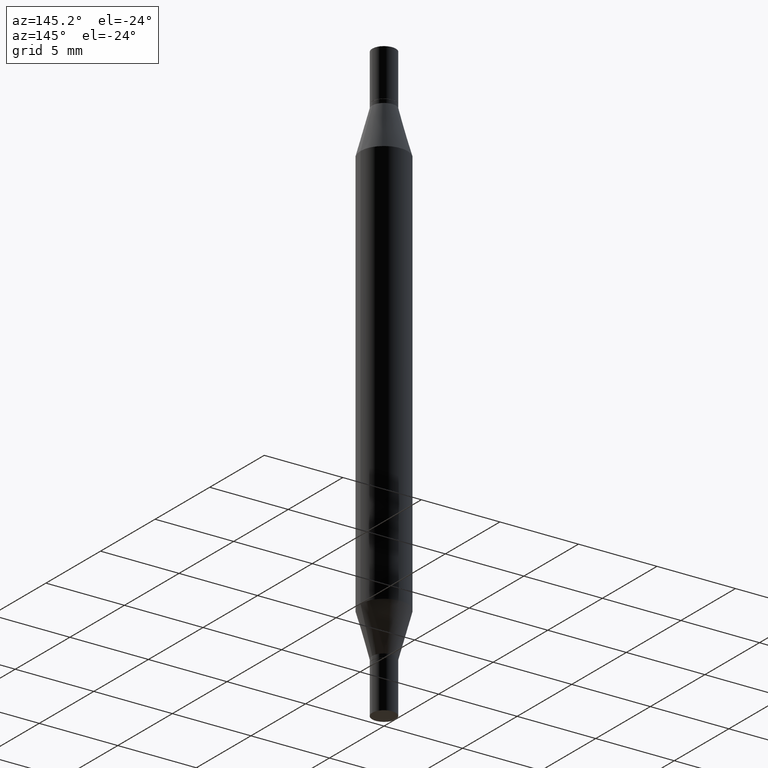
[diagram: clean part render]
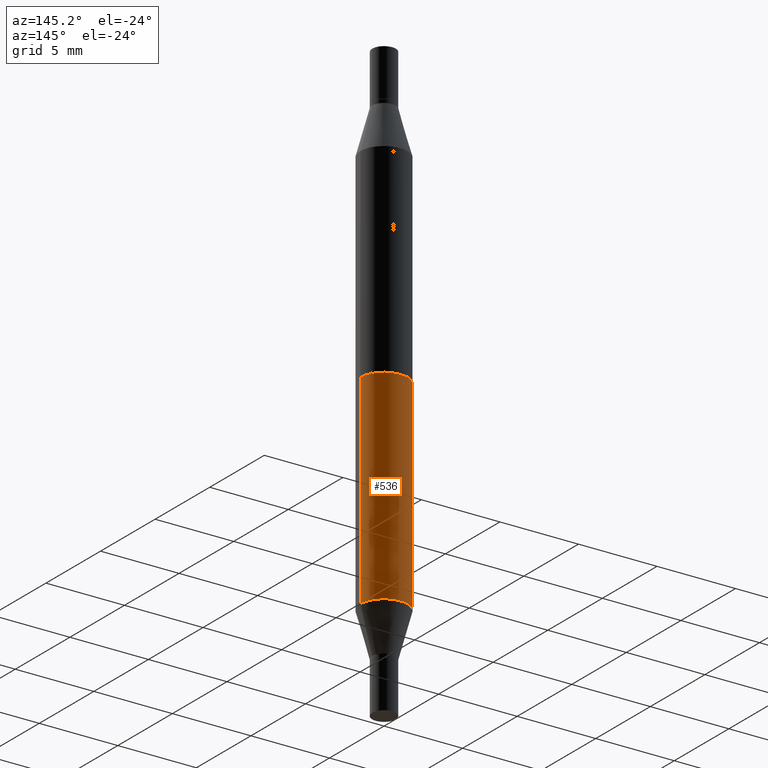
[diagram: same view with one face highlighted and labeled with its STEP entity id]
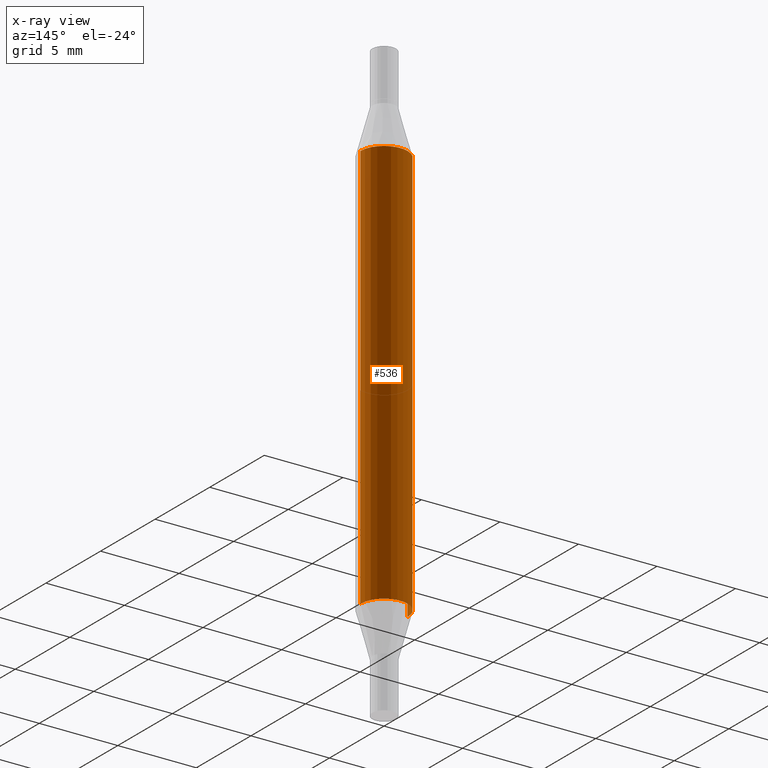
[diagram: x-ray of the same camera — body ghosted, the highlighted face saturated]
A machine part, auxiliary view. The second image highlights one B-rep face of the part: STEP entity #536.
The next image is the same camera in x-ray: the body ghosted, the highlighted face saturated — about 0% of this face is hidden behind the body in this view.
In plain terms, the highlighted cylindrical surface (edge-blend (fillet) strip) has radius 1.4999 mm, axis along (-0, -0, -1).
Its self-contained STEP definition (entity closure, byte-faithful):
#14 = ORIENTED_EDGE ( 'NONE', *, *, #86, .F. ) ;
#41 = CARTESIAN_POINT ( 'NONE',  ( 0.000000000000000000, -5.223847416807283040E-15, -1.496099999999999985 ) ) ;
#43 = CARTESIAN_POINT ( 'NONE',  ( 3.076410765668156654E-29, -4.392299240039190746E-15, -1.258004501176717804 ) ) ;
#45 = EDGE_CURVE ( 'NONE', #464, #46, #835, .T. ) ;
#46 = VERTEX_POINT ( 'NONE', #794 ) ;
#62 = LINE ( 'NONE', #969, #603 ) ;
#64 = DIRECTION ( 'NONE',  ( -2.445468806185136877E-29, -3.491805094961123683E-15, -1.000000000000000000 ) ) ;
#86 = EDGE_CURVE ( 'NONE', #631, #237, #602, .T. ) ;
#94 = ORIENTED_EDGE ( 'NONE', *, *, #379, .F. ) ;
#118 = DIRECTION ( 'NONE',  ( -2.445468806185136597E-29, -3.491805094961124077E-15, -1.000000000000000000 ) ) ;
#196 = FACE_OUTER_BOUND ( 'NONE', #420, .T. ) ;
#203 = AXIS2_PLACEMENT_3D ( 'NONE', #43, #799, #583 ) ;
#229 = CARTESIAN_POINT ( 'NONE',  ( -0.05905000000000000526, -4.818735010038875060E-15, -1.496099999999999985 ) ) ;
#232 = ORIENTED_EDGE ( 'NONE', *, *, #45, .T. ) ;
#237 = VERTEX_POINT ( 'NONE', #812 ) ;
#240 = ORIENTED_EDGE ( 'NONE', *, *, #610, .T. ) ;
#379 = EDGE_CURVE ( 'NONE', #237, #46, #908, .T. ) ;
#417 = DIRECTION ( 'NONE',  ( 1.000000000000000000, -6.982962677686272233E-15, 0.000000000000000000 ) ) ;
#420 = EDGE_LOOP ( 'NONE', ( #94, #14, #240, #232 ) ) ;
#464 = VERTEX_POINT ( 'NONE', #761 ) ;
#465 = DIRECTION ( 'NONE',  ( -2.445468806185136877E-29, -3.491805094961123683E-15, -1.000000000000000000 ) ) ;
#497 = CYLINDRICAL_SURFACE ( 'NONE', #650, 0.05905000000000000526 ) ;
#536 = ADVANCED_FACE ( 'NONE', ( #196 ), #497, .T. ) ;
#583 = DIRECTION ( 'NONE',  ( 1.000000000000000000, -6.982962677686273021E-15, 0.000000000000000000 ) ) ;
#602 = CIRCLE ( 'NONE', #897, 0.05904999999999999832 ) ;
#603 = VECTOR ( 'NONE', #64, 39.37007874015748143 ) ;
#610 = EDGE_CURVE ( 'NONE', #631, #464, #62, .T. ) ;
#631 = VERTEX_POINT ( 'NONE', #671 ) ;
#646 = CARTESIAN_POINT ( 'NONE',  ( 3.076410765668156654E-29, -8.311408901143919011E-16, -0.2380954988232820146 ) ) ;
#650 = AXIS2_PLACEMENT_3D ( 'NONE', #41, #118, #417 ) ;
#671 = CARTESIAN_POINT ( 'NONE',  ( 0.05904999999999999832, -1.243484836231766624E-15, -0.2380954988232820146 ) ) ;
#738 = DIRECTION ( 'NONE',  ( 2.445468806185136597E-29, 3.491805094961124077E-15, 1.000000000000000000 ) ) ;
#761 = CARTESIAN_POINT ( 'NONE',  ( 0.05904999999999999832, -4.804643186156564878E-15, -1.258004501176717804 ) ) ;
#794 = CARTESIAN_POINT ( 'NONE',  ( -0.05904999999999999832, -2.206690208753205272E-15, -1.258004501176717804 ) ) ;
#799 = DIRECTION ( 'NONE',  ( -2.445468806185136597E-29, 3.491481338843145583E-15, 1.000000000000000000 ) ) ;
#812 = CARTESIAN_POINT ( 'NONE',  ( -0.05904999999999999832, -4.260284833459836245E-16, -0.2380954988232820146 ) ) ;
#814 = VECTOR ( 'NONE', #465, 39.37007874015748143 ) ;
#835 = CIRCLE ( 'NONE', #203, 0.05904999999999999832 ) ;
#876 = DIRECTION ( 'NONE',  ( 1.000000000000000000, -6.982962677686265133E-15, 0.000000000000000000 ) ) ;
#897 = AXIS2_PLACEMENT_3D ( 'NONE', #646, #738, #876 ) ;
#908 = LINE ( 'NONE', #229, #814 ) ;
#969 = CARTESIAN_POINT ( 'NONE',  ( 0.05905000000000000526, -5.636191362924657961E-15, -1.496099999999999985 ) ) ;